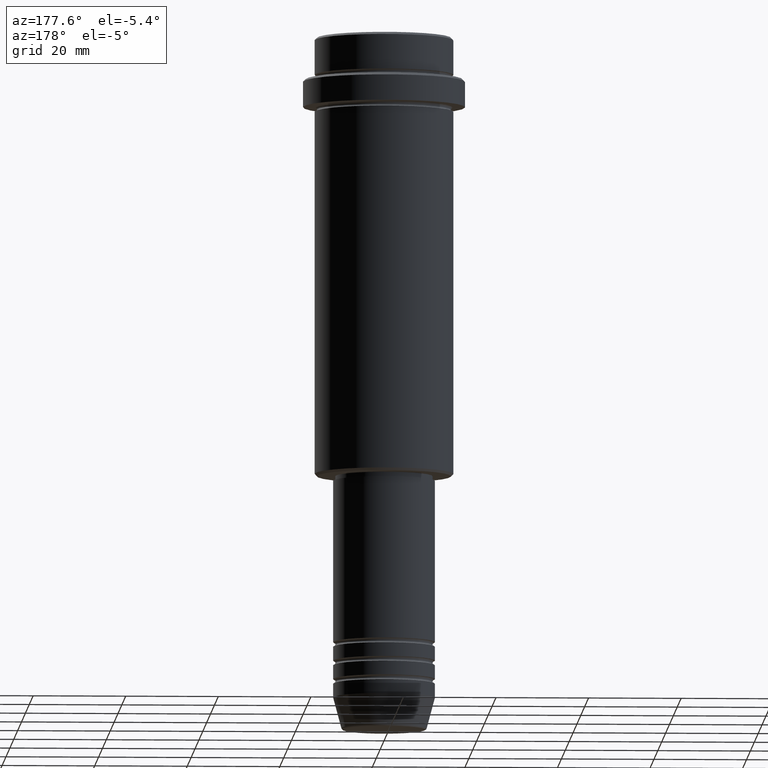
[diagram: clean part render]
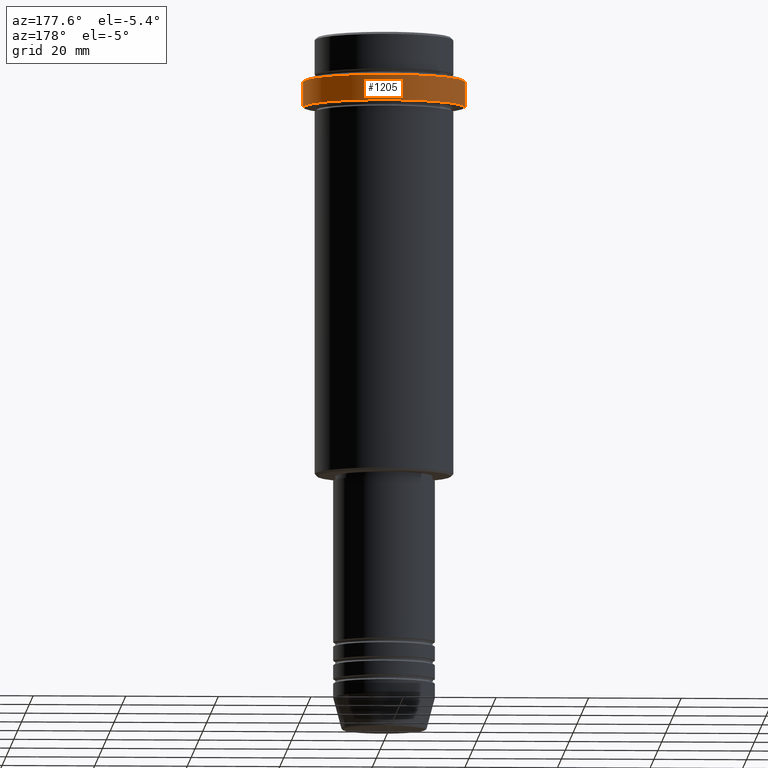
[diagram: same view with one face highlighted and labeled with its STEP entity id]
A machine part, auxiliary view. The second image highlights one B-rep face of the part: STEP entity #1205.
In plain terms, the highlighted cylindrical surface (partial cylindrical patch) has radius 17.5 mm, axis along (-0, -0, 1).
Its self-contained STEP definition (entity closure, byte-faithful):
#54 = EDGE_CURVE ( 'NONE', #598, #526, #587, .T. ) ;
#81 = FACE_OUTER_BOUND ( 'NONE', #1084, .T. ) ;
#88 = VECTOR ( 'NONE', #930, 1000.000000000000000 ) ;
#176 = CARTESIAN_POINT ( 'NONE',  ( 17.50000000000000000, 0.000000000000000000, -15.00000000000000000 ) ) ;
#194 = LINE ( 'NONE', #848, #1355 ) ;
#324 = ORIENTED_EDGE ( 'NONE', *, *, #755, .T. ) ;
#407 = EDGE_CURVE ( 'NONE', #598, #694, #926, .T. ) ;
#414 = DIRECTION ( 'NONE',  ( 0.000000000000000000, 0.000000000000000000, -1.000000000000000000 ) ) ;
#437 = CARTESIAN_POINT ( 'NONE',  ( 0.000000000000000000, 0.000000000000000000, 0.000000000000000000 ) ) ;
#443 = CARTESIAN_POINT ( 'NONE',  ( 0.000000000000000000, 0.000000000000000000, -9.500000000000014211 ) ) ;
#456 = CARTESIAN_POINT ( 'NONE',  ( 17.50000000000000000, 0.000000000000000000, -9.500000000000014211 ) ) ;
#526 = VERTEX_POINT ( 'NONE', #456 ) ;
#580 = CARTESIAN_POINT ( 'NONE',  ( 17.50000000000000000, 0.000000000000000000, 0.000000000000000000 ) ) ;
#587 = LINE ( 'NONE', #580, #88 ) ;
#598 = VERTEX_POINT ( 'NONE', #176 ) ;
#684 = DIRECTION ( 'NONE',  ( 1.000000000000000000, 0.000000000000000000, 0.000000000000000000 ) ) ;
#694 = VERTEX_POINT ( 'NONE', #1289 ) ;
#707 = AXIS2_PLACEMENT_3D ( 'NONE', #443, #414, #1171 ) ;
#755 = EDGE_CURVE ( 'NONE', #694, #795, #194, .T. ) ;
#760 = DIRECTION ( 'NONE',  ( -0.000000000000000000, -0.000000000000000000, 1.000000000000000000 ) ) ;
#777 = ORIENTED_EDGE ( 'NONE', *, *, #54, .F. ) ;
#785 = DIRECTION ( 'NONE',  ( -0.000000000000000000, -0.000000000000000000, 1.000000000000000000 ) ) ;
#795 = VERTEX_POINT ( 'NONE', #1083 ) ;
#837 = AXIS2_PLACEMENT_3D ( 'NONE', #437, #862, #1182 ) ;
#848 = CARTESIAN_POINT ( 'NONE',  ( -17.50000000000000000, 2.143131898507868248E-15, 0.000000000000000000 ) ) ;
#862 = DIRECTION ( 'NONE',  ( -0.000000000000000000, -0.000000000000000000, 1.000000000000000000 ) ) ;
#884 = ORIENTED_EDGE ( 'NONE', *, *, #1212, .T. ) ;
#926 = CIRCLE ( 'NONE', #1280, 17.50000000000000000 ) ;
#930 = DIRECTION ( 'NONE',  ( -0.000000000000000000, -0.000000000000000000, 1.000000000000000000 ) ) ;
#1011 = CARTESIAN_POINT ( 'NONE',  ( 0.000000000000000000, 0.000000000000000000, -15.00000000000000000 ) ) ;
#1083 = CARTESIAN_POINT ( 'NONE',  ( -17.50000000000000000, 2.143131898507868248E-15, -9.500000000000014211 ) ) ;
#1084 = EDGE_LOOP ( 'NONE', ( #1218, #324, #884, #777 ) ) ;
#1171 = DIRECTION ( 'NONE',  ( 1.000000000000000000, 0.000000000000000000, 0.000000000000000000 ) ) ;
#1182 = DIRECTION ( 'NONE',  ( 1.000000000000000000, 0.000000000000000000, 0.000000000000000000 ) ) ;
#1205 = ADVANCED_FACE ( 'NONE', ( #81 ), #1407, .T. ) ;
#1212 = EDGE_CURVE ( 'NONE', #795, #526, #1306, .T. ) ;
#1218 = ORIENTED_EDGE ( 'NONE', *, *, #407, .T. ) ;
#1280 = AXIS2_PLACEMENT_3D ( 'NONE', #1011, #785, #684 ) ;
#1289 = CARTESIAN_POINT ( 'NONE',  ( -17.50000000000000000, 2.143131898507868248E-15, -15.00000000000000000 ) ) ;
#1306 = CIRCLE ( 'NONE', #707, 17.50000000000000000 ) ;
#1355 = VECTOR ( 'NONE', #760, 1000.000000000000000 ) ;
#1407 = CYLINDRICAL_SURFACE ( 'NONE', #837, 17.50000000000000000 ) ;